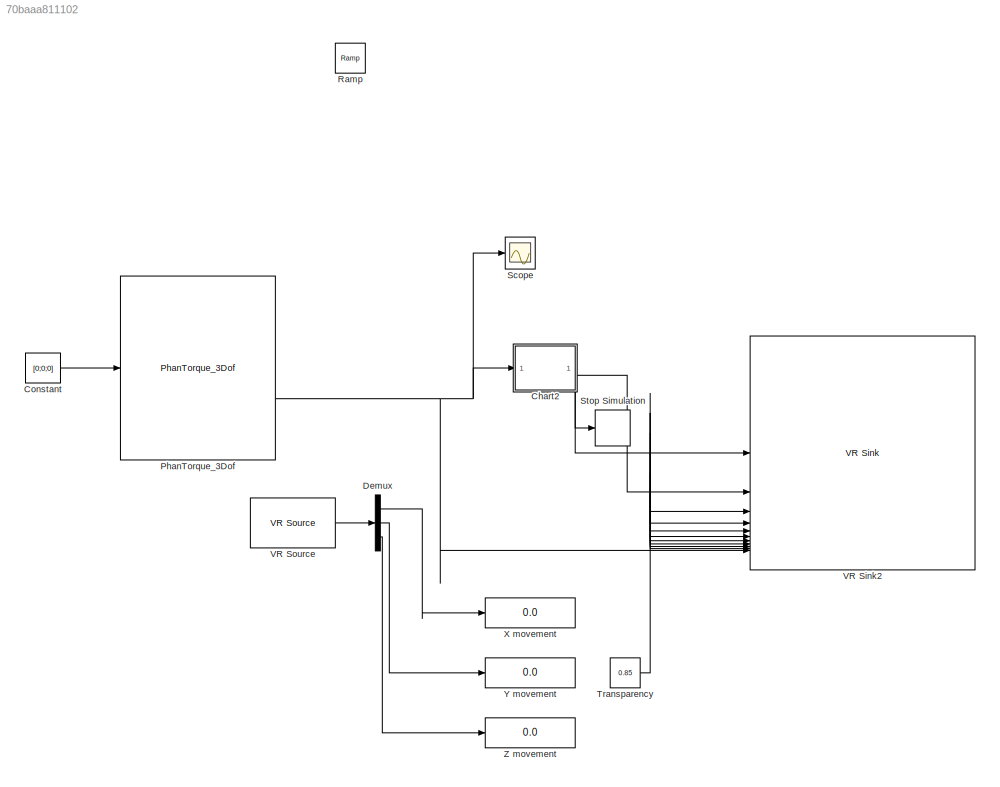
MODEL slx_70baaa811102
KIND model
CONFIG AbsTol = auto
CONFIG EnableMultiTasking = off
CONFIG FixedStep = 0.001
CONFIG MaxStep = auto
CONFIG MinStep = auto
CONFIG RelTol = 1e-3
CONFIG SampleTimeConstraint = Unconstrained
CONFIG SolverName = FixedStepDiscrete
CONFIG StartTime = 0.0
CONFIG StopTime = inf
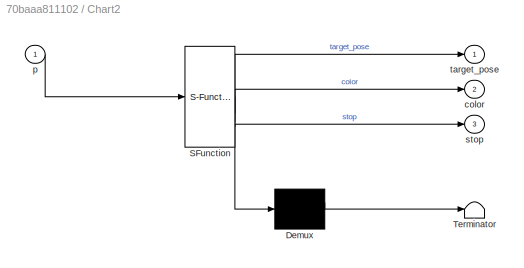
BLOCK [SubSystem] Chart2
  ErrorFcn = Stateflow.Translate.translate
  PermitHierarchicalResolution = ExplicitOnly
  SFBlockType = Chart
  TreatAsAtomicUnit = on
BLOCK [Demux] Chart2/ Demux 
  Outputs = 1
BLOCK [S-Function] Chart2/ SFunction 
  EnableBusSupport = on
  FunctionName = sf_sfun
  PortCounts = [1 4]
  SFcnIsStateOwnerBlock = off
  SFunctionDeploymentMode = off
  Tag = Stateflow S-Function 2
BLOCK [Terminator] Chart2/ Terminator 
BLOCK [Outport] Chart2/color
  Port = 2
BLOCK [Inport] Chart2/p
BLOCK [Outport] Chart2/stop
  Port = 3
BLOCK [Outport] Chart2/target_pose
BLOCK [Constant] Constant
  Value = [0;0;0]
BLOCK [Demux] Demux
  Outputs = 3
BLOCK [Reference] PhanTorque_3Dof  REF=PhanTorque_3Dof_Library_64Bits/PhanTorque_3Dof
  SourceBlock = PhanTorque_3Dof_Library_64Bits/PhanTorque_3Dof
BLOCK [Reference] Ramp  REF=simulink/Sources/Ramp
  IOType = siggen
  LibrarySourceBlock = simgens/Ramp
  SourceBlock = simulink/Sources/Ramp
  SourceType = Ramp
BLOCK [Scope] Scope
  Floating = off
  NumInputPorts = 1
  ScopeSpecificationString = Simulink.scopes.TimeScopeBlockCfg('CurrentConfiguration', extmgr.ConfigurationSet(extmgr.Configuration('Core','General UI',true),extmgr.Configuration('Core','Source UI',true),extmgr.Configuration('Sources','WiredSimulink',true),extmgr.Configuration('Visuals','Time Domain',true),extmgr.Configuration('Tools','Plot Navigation',true),extmgr.Configuration('Tools','Measurements',true)),'Version','2023b'...<+1ch>
BLOCK [Stop] Stop Simulation
BLOCK [Constant] Transparency
  Value = 0.85
BLOCK [Reference] VR Sink2  REF=vrlib/VR Sink
  InstantiateOnLoad = on
  SourceBlock = vrlib/VR Sink
  SourceType = Virtual Reality Sink
BLOCK [Reference] VR Source  REF=vrlib/VR Source
  InstantiateOnLoad = on
  SourceBlock = vrlib/VR Source
  SourceType = Virtual Reality Source
BLOCK [Display] X movement
  Decimation = 1
BLOCK [Display] Y movement
  Decimation = 1
BLOCK [Display] Z movement
  Decimation = 1
LINE Chart2:1 -> VR Sink2:1
LINE Chart2:2 -> VR Sink2:2
LINE Chart2:3 -> Stop Simulation:1
LINE Constant:1 -> PhanTorque_3Dof:1
LINE Demux:1 -> X movement:1
LINE Demux:2 -> Y movement:1
LINE Demux:3 -> Z movement:1
NET PhanTorque_3Dof:2 -> Chart2:1, Scope:1, VR Sink2:11
NET Transparency:1 -> VR Sink2:10, VR Sink2:3, VR Sink2:4, VR Sink2:5, VR Sink2:6, VR Sink2:7, VR Sink2:8, VR Sink2:9
LINE VR Source:1 -> Demux:1
note: NET lines group one-source signal fan-out (src -> all destinations, sorted); 1:1 wires keep LINE
CHART Chart2 states=7 transitions=10
  STATE_LABEL 'initial\nentry:\nstop = 0;\nradius=0.1;\ncounter=0;\nangle_matrix=[0 pi/4 pi/2 3/4*pi pi 5/4*pi 3/2*pi 7/4*pi];\n% Ensure that each unique angle is included at least once and adding two other angles taken randomly\nrandom_angles = [angle_matrix(randperm(length(angle_matrix), 8)) angle_matrix(randi(8)) angle_matrix(randi(8))];\n'
  STATE_LABEL 'rand_angle\nangle = random_angles(counter+1);'
  STATE_LABEL 'new_target\nentry:\ncolor=[1 0 0];\ntarget_pose=radius*[cos(angle); sin(angle); 0];\nerr=norm(p(1:2)-target_pose(1:2));\nduring:\nerr=norm(p(1:2)-target_pose(1:2));\n'
  STATE_LABEL 'feedback\nentry:\ncolor=[0 0 1];\nduring:\nerr=norm(p(1:2)-target_pose(1:2));\n'
  STATE_LABEL "back\nentry:\ntarget_pose=[0 0 0]';\ncolor=[1 0 0];\nduring:\nerr=norm(p(1:2)-target_pose(1:2));\n"
  STATE_LABEL 'feedback2\nentry:\ncolor=[0 0 1];\nduring:\nerr=norm(p(1:2)-target_pose(1:2));\n'
  STATE_LABEL 'finish\nstop = 1;\nend'
CHART  states=0 transitions=0
